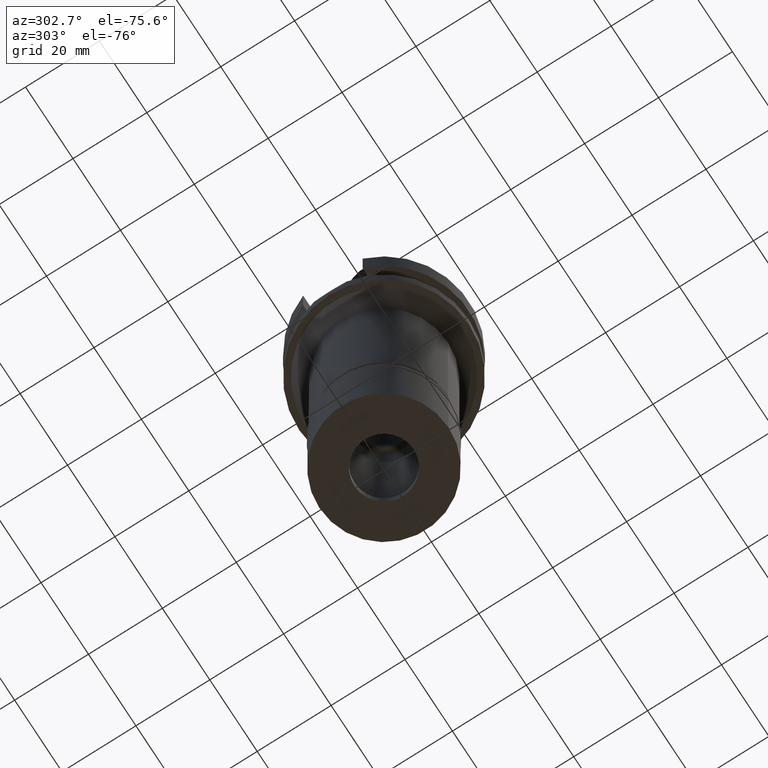
[diagram: clean part render]
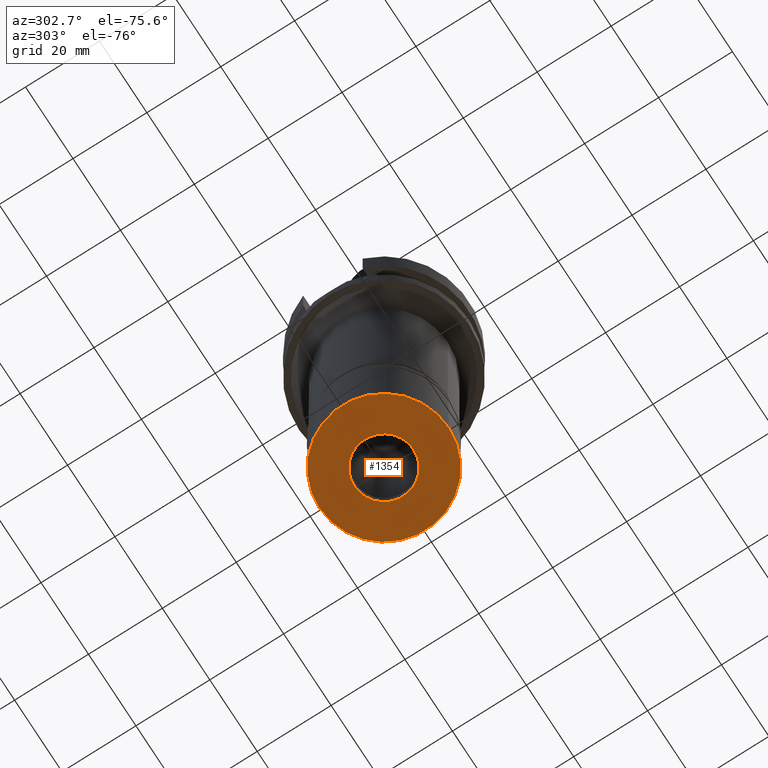
[diagram: same view with one face highlighted and labeled with its STEP entity id]
A machine part, auxiliary view. The second image highlights one B-rep face of the part: STEP entity #1354.
In plain terms, the highlighted planar face has unit normal (0, 0, -1).
Its self-contained STEP definition (entity closure, byte-faithful):
#40 = EDGE_CURVE ( 'NONE', #1753, #730, #1629, .T. ) ;
#210 = FACE_OUTER_BOUND ( 'NONE', #493, .T. ) ;
#332 = CARTESIAN_POINT ( 'NONE',  ( 0.0000000000000000000, 0.0000000000000000000, -26.70000000000000284 ) ) ;
#387 = DIRECTION ( 'NONE',  ( 0.0000000000000000000, 0.0000000000000000000, 1.000000000000000000 ) ) ;
#429 = DIRECTION ( 'NONE',  ( 0.0000000000000000000, 1.000000000000000000, 0.0000000000000000000 ) ) ;
#493 = EDGE_LOOP ( 'NONE', ( #1872, #1227 ) ) ;
#501 = ORIENTED_EDGE ( 'NONE', *, *, #1165, .F. ) ;
#527 = CIRCLE ( 'NONE', #2748, 17.50000000000000000 ) ;
#553 = ORIENTED_EDGE ( 'NONE', *, *, #2136, .F. ) ;
#559 = EDGE_LOOP ( 'NONE', ( #553, #501 ) ) ;
#625 = CARTESIAN_POINT ( 'NONE',  ( 0.0000000000000000000, 17.50000000000000000, -26.70000000000000284 ) ) ;
#637 = DIRECTION ( 'NONE',  ( 0.0000000000000000000, -1.000000000000000000, 0.0000000000000000000 ) ) ;
#730 = VERTEX_POINT ( 'NONE', #1180 ) ;
#747 = VERTEX_POINT ( 'NONE', #765 ) ;
#765 = CARTESIAN_POINT ( 'NONE',  ( 0.0000000000000000000, -8.000000000000000000, -26.70000000000000284 ) ) ;
#790 = CARTESIAN_POINT ( 'NONE',  ( 0.0000000000000000000, 8.000000000000000000, -26.70000000000000284 ) ) ;
#797 = DIRECTION ( 'NONE',  ( 0.0000000000000000000, -1.000000000000000000, 0.0000000000000000000 ) ) ;
#1030 = DIRECTION ( 'NONE',  ( 0.0000000000000000000, 0.0000000000000000000, 1.000000000000000000 ) ) ;
#1046 = CARTESIAN_POINT ( 'NONE',  ( 0.0000000000000000000, 0.0000000000000000000, -26.70000000000000284 ) ) ;
#1091 = CARTESIAN_POINT ( 'NONE',  ( 0.0000000000000000000, 0.0000000000000000000, -26.70000000000000284 ) ) ;
#1127 = VERTEX_POINT ( 'NONE', #790 ) ;
#1165 = EDGE_CURVE ( 'NONE', #747, #1127, #1287, .T. ) ;
#1180 = CARTESIAN_POINT ( 'NONE',  ( 0.0000000000000000000, -17.50000000000000000, -26.70000000000000284 ) ) ;
#1227 = ORIENTED_EDGE ( 'NONE', *, *, #1419, .F. ) ;
#1287 = CIRCLE ( 'NONE', #2107, 8.000000000000000000 ) ;
#1354 = ADVANCED_FACE ( 'NONE', ( #210, #1763 ), #2038, .T. ) ;
#1419 = EDGE_CURVE ( 'NONE', #730, #1753, #527, .T. ) ;
#1629 = CIRCLE ( 'NONE', #2529, 17.50000000000000000 ) ;
#1704 = DIRECTION ( 'NONE',  ( 0.0000000000000000000, -1.000000000000000000, 0.0000000000000000000 ) ) ;
#1732 = CARTESIAN_POINT ( 'NONE',  ( 0.0000000000000000000, 0.0000000000000000000, -26.70000000000000284 ) ) ;
#1753 = VERTEX_POINT ( 'NONE', #625 ) ;
#1763 = FACE_BOUND ( 'NONE', #559, .T. ) ;
#1766 = AXIS2_PLACEMENT_3D ( 'NONE', #1091, #2924, #429 ) ;
#1872 = ORIENTED_EDGE ( 'NONE', *, *, #40, .F. ) ;
#1908 = CIRCLE ( 'NONE', #1766, 8.000000000000000000 ) ;
#1968 = DIRECTION ( 'NONE',  ( 0.0000000000000000000, 1.000000000000000000, 0.0000000000000000000 ) ) ;
#2038 = PLANE ( 'NONE',  #2558 ) ;
#2107 = AXIS2_PLACEMENT_3D ( 'NONE', #332, #2413, #1704 ) ;
#2130 = DIRECTION ( 'NONE',  ( 0.0000000000000000000, 0.0000000000000000000, -1.000000000000000000 ) ) ;
#2136 = EDGE_CURVE ( 'NONE', #1127, #747, #1908, .T. ) ;
#2413 = DIRECTION ( 'NONE',  ( 0.0000000000000000000, 0.0000000000000000000, -1.000000000000000000 ) ) ;
#2529 = AXIS2_PLACEMENT_3D ( 'NONE', #1046, #1030, #1968 ) ;
#2558 = AXIS2_PLACEMENT_3D ( 'NONE', #2749, #2130, #797 ) ;
#2748 = AXIS2_PLACEMENT_3D ( 'NONE', #1732, #387, #637 ) ;
#2749 = CARTESIAN_POINT ( 'NONE',  ( 0.0000000000000000000, 0.0000000000000000000, -26.70000000000000284 ) ) ;
#2924 = DIRECTION ( 'NONE',  ( 0.0000000000000000000, 0.0000000000000000000, -1.000000000000000000 ) ) ;